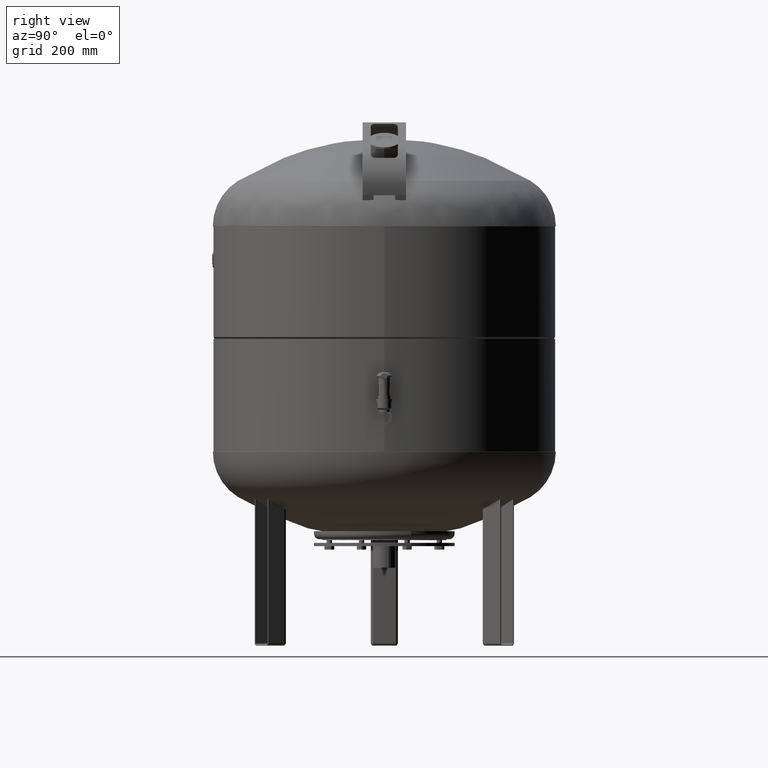
[diagram: clean part render]
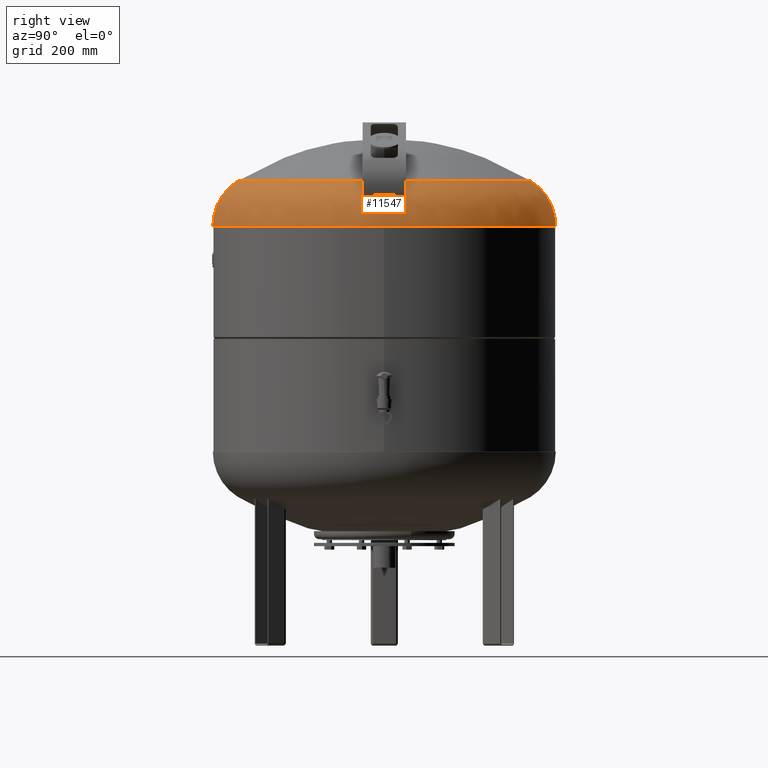
[diagram: same view with one face highlighted and labeled with its STEP entity id]
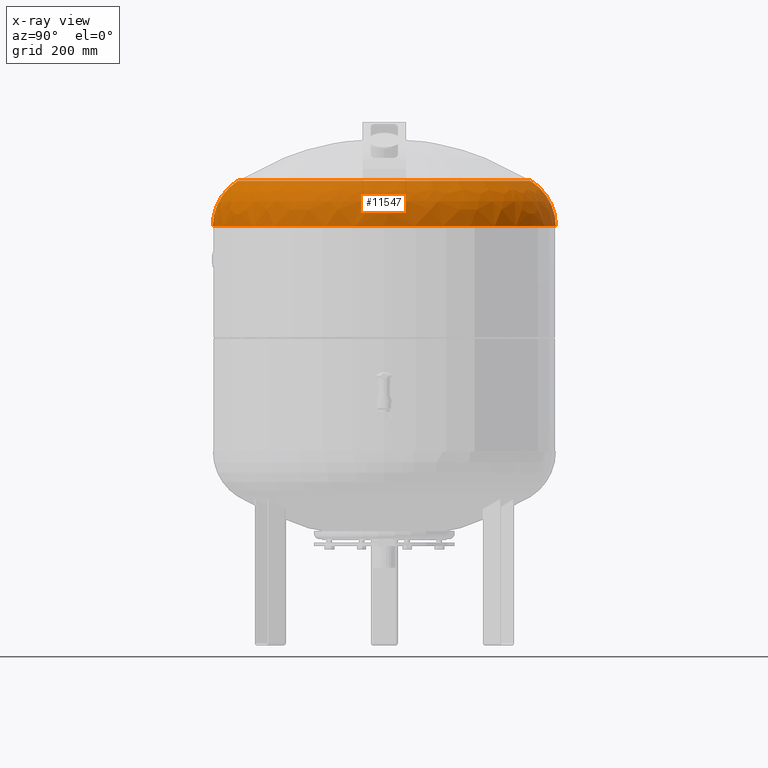
[diagram: x-ray of the same camera — body ghosted, the highlighted face saturated]
A machine part, right view. The second image highlights one B-rep face of the part: STEP entity #11547.
The next image is the same camera in x-ray: the body ghosted, the highlighted face saturated — about 0% of this face is hidden behind the body in this view.
In plain terms, the highlighted face is a freeform B-spline surface patch.
Its self-contained STEP definition (entity closure, byte-faithful):
#11430=CARTESIAN_POINT('',(317.0,9.105293E-015,775.240550627371360));
#11431=VERTEX_POINT('',#11430);
#11438=CARTESIAN_POINT('',(9.762260E-031,-317.000000000000110,775.240550627371590));
#11439=VERTEX_POINT('',#11438);
#11440=CARTESIAN_POINT('',(-1.556097E-014,-2.971473E-014,775.240550627371360));
#11441=DIRECTION('',(0.0,0.0,1.0));
#11442=DIRECTION('',(-1.0,0.0,0.0));
#11443=AXIS2_PLACEMENT_3D('',#11440,#11441,#11442);
#11444=CIRCLE('',#11443,317.000000000000060);
#11445=EDGE_CURVE('',#11439,#11431,#11444,.T.);
#11457=CARTESIAN_POINT('',(-1.457282E-014,119.0,775.240550627371020));
#11458=CARTESIAN_POINT('',(-5.049191E-015,118.999999999999740,874.240550627371250));
#11459=CARTESIAN_POINT('',(-1.717279E-014,217.999999999999970,874.240550627371250));
#11460=CARTESIAN_POINT('',(-2.929640E-014,317.000000000000230,874.240550627371250));
#11461=CARTESIAN_POINT('',(-3.882002E-014,316.999999999999940,775.240550627370910));
#11462=CARTESIAN_POINT('',(-119.000000000000010,118.999999999999940,775.240550627371020));
#11463=CARTESIAN_POINT('',(-118.999999999999730,118.999999999999700,874.240550627371250));
#11464=CARTESIAN_POINT('',(-217.999999999999940,217.999999999999890,874.240550627371250));
#11465=CARTESIAN_POINT('',(-317.000000000000230,317.000000000000110,874.240550627371250));
#11466=CARTESIAN_POINT('',(-317.0,316.999999999999890,775.240550627370910));
#11467=CARTESIAN_POINT('',(-119.000000000000030,-4.428754E-014,775.240550627371020));
#11468=CARTESIAN_POINT('',(-118.999999999999740,-2.610154E-014,874.240550627371250));
#11469=CARTESIAN_POINT('',(-217.999999999999970,-3.822514E-014,874.240550627371250));
#11470=CARTESIAN_POINT('',(-317.000000000000230,-5.034875E-014,874.240550627371250));
#11471=CARTESIAN_POINT('',(-317.0,-6.853475E-014,775.240550627371020));
#11472=CARTESIAN_POINT('',(-118.999999999999990,-119.000000000000040,775.240550627371020));
#11473=CARTESIAN_POINT('',(-118.999999999999700,-118.999999999999760,874.240550627371250));
#11474=CARTESIAN_POINT('',(-217.999999999999890,-217.999999999999940,874.240550627371250));
#11475=CARTESIAN_POINT('',(-317.000000000000110,-317.000000000000230,874.240550627371250));
#11476=CARTESIAN_POINT('',(-316.999999999999890,-317.0,775.240550627371020));
#11477=CARTESIAN_POINT('',(1.457282E-014,-119.000000000000060,775.240550627371020));
#11478=CARTESIAN_POINT('',(2.409644E-014,-118.999999999999770,874.240550627371250));
#11479=CARTESIAN_POINT('',(3.622004E-014,-217.999999999999970,874.240550627371250));
#11480=CARTESIAN_POINT('',(4.834365E-014,-317.000000000000230,874.240550627371250));
#11481=CARTESIAN_POINT('',(3.882002E-014,-317.000000000000060,775.240550627371140));
#11482=CARTESIAN_POINT('',(119.000000000000010,-119.000000000000010,775.240550627371020));
#11483=CARTESIAN_POINT('',(118.999999999999760,-118.999999999999730,874.240550627371250));
#11484=CARTESIAN_POINT('',(217.999999999999940,-217.999999999999890,874.240550627371250));
#11485=CARTESIAN_POINT('',(317.000000000000230,-317.000000000000170,874.240550627371250));
#11486=CARTESIAN_POINT('',(317.0,-316.999999999999940,775.240550627371020));
#11487=CARTESIAN_POINT('',(119.000000000000030,-1.514191E-014,775.240550627371020));
#11488=CARTESIAN_POINT('',(118.999999999999770,3.044092E-015,874.240550627371250));
#11489=CARTESIAN_POINT('',(217.999999999999970,1.516769E-014,874.240550627371250));
#11490=CARTESIAN_POINT('',(317.000000000000230,2.729130E-014,874.240550627371250));
#11491=CARTESIAN_POINT('',(317.0,9.105293E-015,775.240550627371020));
#11492=CARTESIAN_POINT('',(118.999999999999990,118.999999999999990,775.240550627371020));
#11493=CARTESIAN_POINT('',(118.999999999999730,118.999999999999730,874.240550627371250));
#11494=CARTESIAN_POINT('',(217.999999999999890,217.999999999999940,874.240550627371250));
#11495=CARTESIAN_POINT('',(317.000000000000110,317.000000000000170,874.240550627371250));
#11496=CARTESIAN_POINT('',(316.999999999999890,316.999999999999940,775.240550627370910));
#11497=CARTESIAN_POINT('',(-1.457282E-014,119.0,775.240550627371020));
#11498=CARTESIAN_POINT('',(-5.049191E-015,118.999999999999740,874.240550627371250));
#11499=CARTESIAN_POINT('',(-1.717279E-014,217.999999999999970,874.240550627371250));
#11500=CARTESIAN_POINT('',(-2.929640E-014,317.000000000000230,874.240550627371250));
#11501=CARTESIAN_POINT('',(-3.882002E-014,316.999999999999940,775.240550627370910));
#11509=(BOUNDED_SURFACE()B_SPLINE_SURFACE(2,2,((#11457,#11462,#11467,#11472,#11477,#11482,#11487,#11492,#11497),(#11458,#11463,#11468,#11473,#11478,#11483,#11488,#11493,#11498),(#11459,#11464,#11469,#11474,#11479,#11484,#11489,#11494,#11499),(#11460,#11465,#11470,#11475,#11480,#11485,#11490,#11495,#11500),(#11461,#11466,#11471,#11476,#11481,#11486,#11491,#11496,#11501)),.UNSPECIFIED.,.F.,.T.,.U.)B_SPLINE_SURFACE_WITH_KNOTS((3,2,3),(3,2,2,2,3),(-3.141592653589796,-1.570796326794897,2.884905E-015),(0.0,1.570796326794897,3.141592653589793,4.712388980384690,6.283185307179586),.UNSPECIFIED.)GEOMETRIC_REPRESENTATION_ITEM()RATIONAL_B_SPLINE_SURFACE(((1.0,0.707106781186548,1.0,0.707106781186548,1.0,0.707106781186548,1.0,0.707106781186548,1.0),(0.707106781186546,0.499999999999999,0.707106781186546,0.499999999999999,0.707106781186546,0.499999999999999,0.707106781186546,0.499999999999999,0.707106781186546),(1.0,0.707106781186548,1.0,0.707106781186548,1.0,0.707106781186548,1.0,0.707106781186548,1.0),(0.707106781186547,0.499999999999999,0.707106781186547,0.499999999999999,0.707106781186547,0.499999999999999,0.707106781186547,0.499999999999999,0.707106781186547),(1.0,0.707106781186548,1.0,0.707106781186548,1.0,0.707106781186548,1.0,0.707106781186548,1.0)))REPRESENTATION_ITEM('')SURFACE());
#11510=CARTESIAN_POINT('',(8.065826E-015,-270.639024390243830,859.086439681297520));
#11511=VERTEX_POINT('',#11510);
#11512=CARTESIAN_POINT('',(0.0,-218.000000000000030,775.240550627371480));
#11513=DIRECTION('',(-1.0,0.0,0.0));
#11514=DIRECTION('',(0.0,-1.0,0.0));
#11515=AXIS2_PLACEMENT_3D('',#11512,#11513,#11514);
#11516=CIRCLE('',#11515,99.0);
#11517=EDGE_CURVE('',#11439,#11511,#11516,.T.);
#11518=ORIENTED_EDGE('',*,*,#11517,.F.);
#11519=ORIENTED_EDGE('',*,*,#11445,.T.);
#11520=CARTESIAN_POINT('',(-3.882002E-014,317.0,775.240550627371140));
#11521=VERTEX_POINT('',#11520);
#11522=CARTESIAN_POINT('',(-1.556097E-014,-2.971473E-014,775.240550627371360));
#11523=DIRECTION('',(0.0,0.0,1.0));
#11524=DIRECTION('',(-1.0,0.0,0.0));
#11525=AXIS2_PLACEMENT_3D('',#11522,#11523,#11524);
#11526=CIRCLE('',#11525,317.000000000000060);
#11527=EDGE_CURVE('',#11431,#11521,#11526,.T.);
#11528=ORIENTED_EDGE('',*,*,#11527,.T.);
#11529=CARTESIAN_POINT('',(-2.507680E-014,270.639024390243830,859.086439681297520));
#11530=VERTEX_POINT('',#11529);
#11531=CARTESIAN_POINT('',(-2.669642E-014,217.999999999999970,775.240550627371250));
#11532=DIRECTION('',(1.0,0.0,0.0));
#11533=DIRECTION('',(0.0,1.0,0.0));
#11534=AXIS2_PLACEMENT_3D('',#11531,#11532,#11533);
#11535=CIRCLE('',#11534,99.0);
#11536=EDGE_CURVE('',#11521,#11530,#11535,.T.);
#11537=ORIENTED_EDGE('',*,*,#11536,.T.);
#11538=CARTESIAN_POINT('',(-7.495146E-015,-1.431249E-014,859.086439681297520));
#11539=DIRECTION('',(0.0,0.0,1.0));
#11540=DIRECTION('',(-1.0,0.0,0.0));
#11541=AXIS2_PLACEMENT_3D('',#11538,#11539,#11540);
#11542=CIRCLE('',#11541,270.639024390243830);
#11543=EDGE_CURVE('',#11511,#11530,#11542,.T.);
#11544=ORIENTED_EDGE('',*,*,#11543,.F.);
#11545=EDGE_LOOP('',(#11518,#11519,#11528,#11537,#11544));
#11546=FACE_OUTER_BOUND('',#11545,.T.);
#11547=ADVANCED_FACE('',(#11546),#11509,.T.);